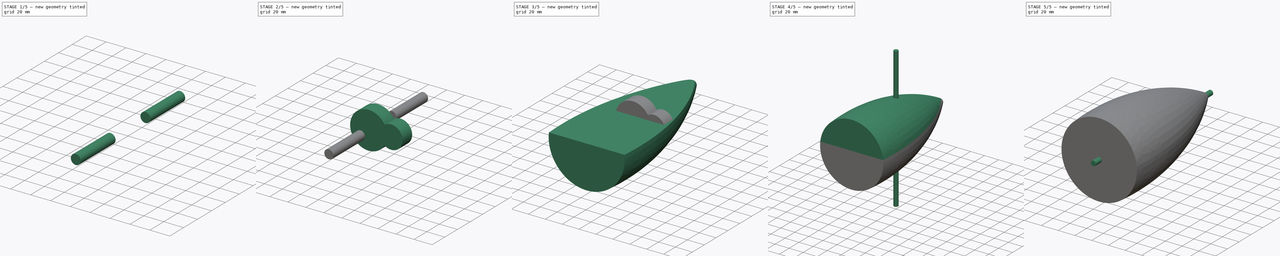
[diagram: build sequence overview — one tinted view per stage of 5, left to right]
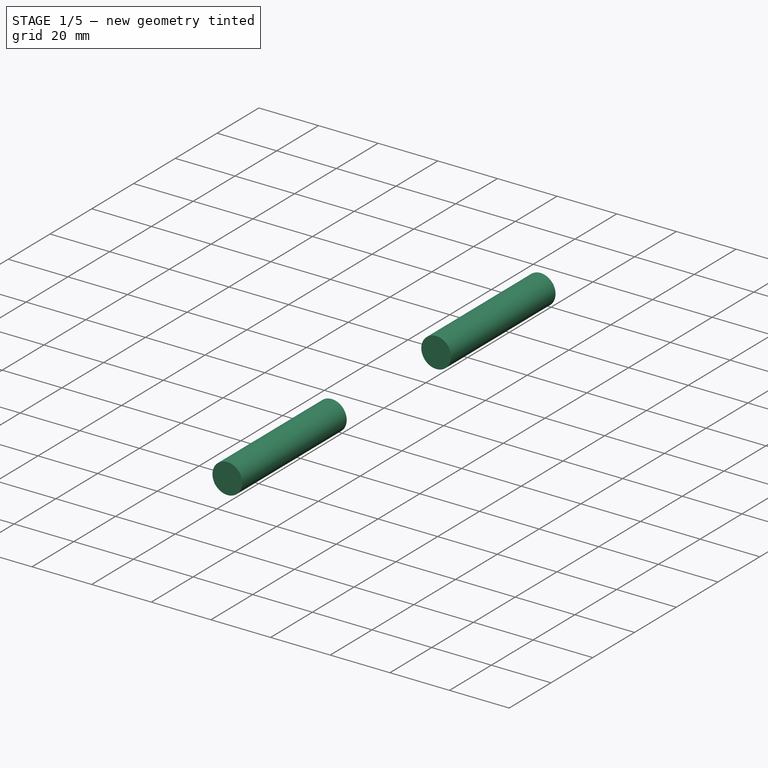
[diagram: stage 1 of 5 — iso view after this stage's code; geometry added in this stage tinted green]
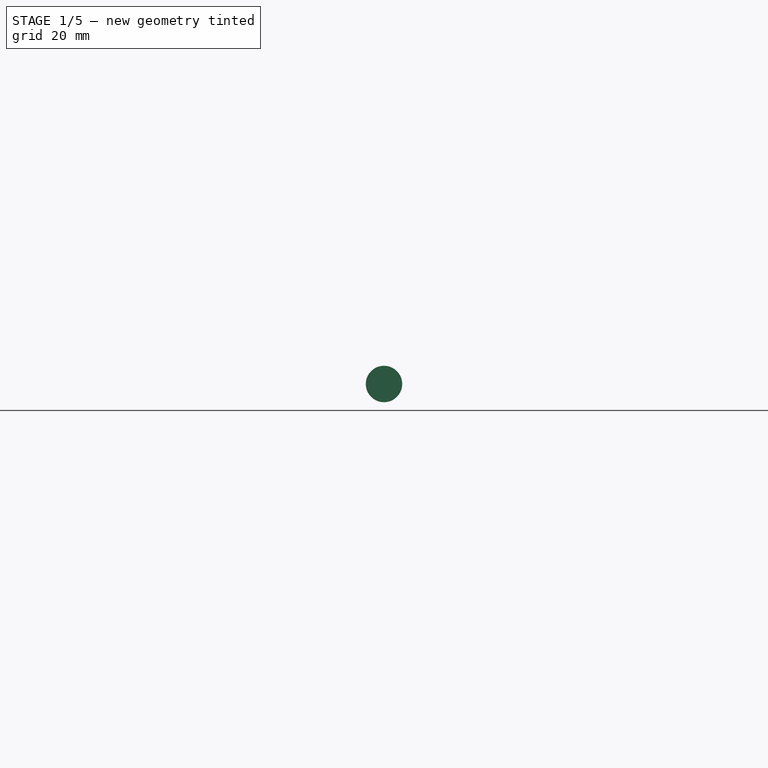
[diagram: stage 1 of 5 — front view after this stage's code; geometry added in this stage tinted green]
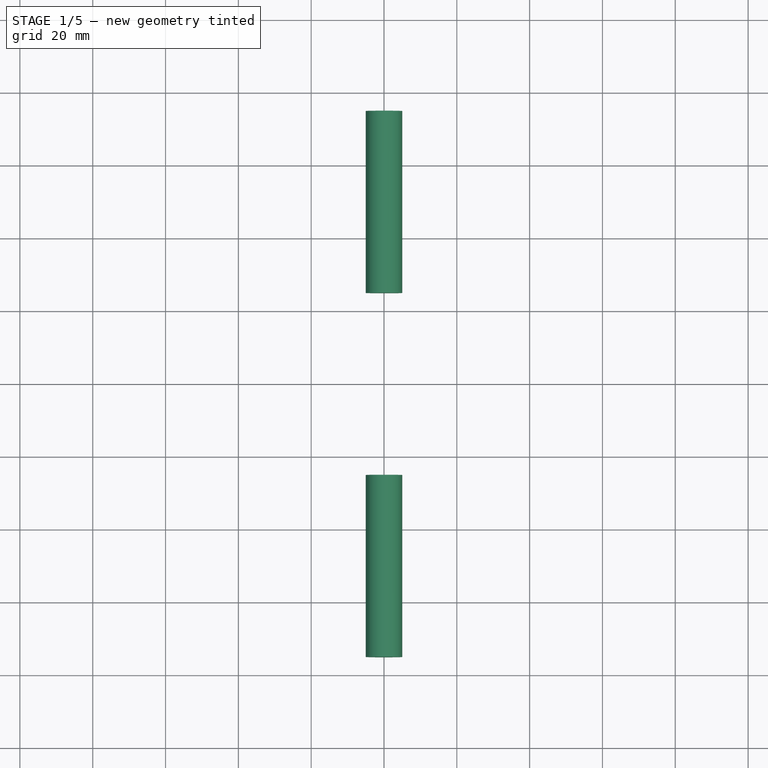
[diagram: stage 1 of 5 — top view after this stage's code; geometry added in this stage tinted green]
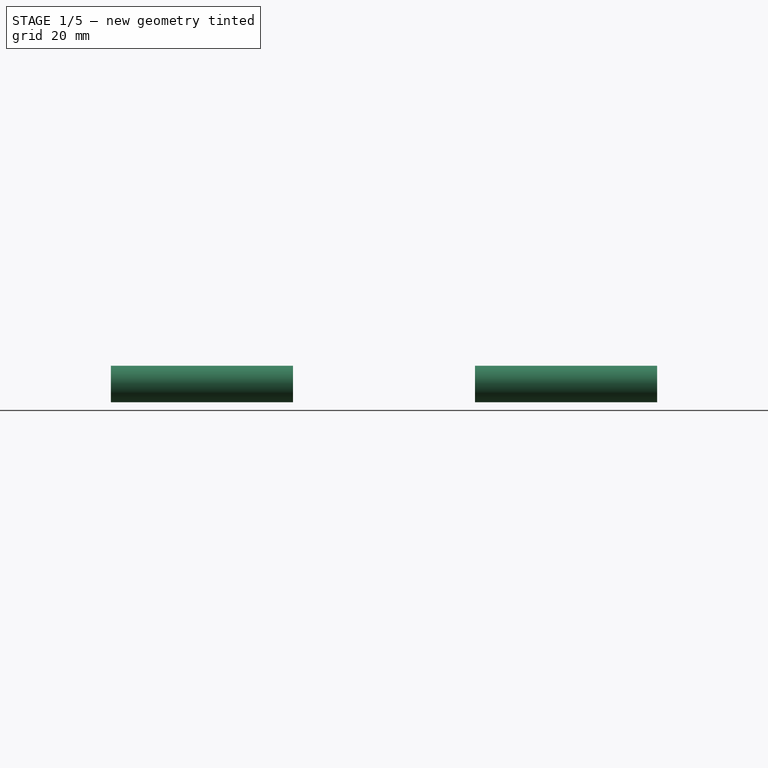
[diagram: stage 1 of 5 — right view after this stage's code; geometry added in this stage tinted green]
FCSTD DOCUMENT  (FreeCAD 0.16R6705 (Git))
Label: puntale_con_tappo
License: All rights reserved
LicenseURL: http://it.wikipedia.org/wiki/<copyright redacted>
objects: Sketcher::SketchObject×11, PartDesign::Pad×7, Part::Loft×2, Part::Part2DObjectPython×2, Part::MultiFuse×2, Part::Fuse×2, Part::Box×1, Part::MultiCommon×1, Part::Cut×1
note: 36 computed .brp shape members not serialized (recipe doc carries the construction recipe); baked Part::Feature solids carry a one-line shape summary decoded from their .brp

FEATURE [Sketcher::SketchObject] Sketch010
  Placement = pos=(0,-25,0) rot=(-1,0,0;4.71239rad)
  sketch-geometry (1):
    g0: Circle CenterX=0 CenterY=0 CenterZ=0 NormalX=0 NormalY=0 NormalZ=1 Radius=5
  constraints (1):
    c: Radius(g0) = 5
FEATURE [PartDesign::Pad] Pad006
  Length = 50
  Length2 = 100
  Placement = pos=(0,-25,0) rot=(-1,0,0;4.71239rad)
  Sketch = -> Sketch010
  Type = 0
FEATURE [Sketcher::SketchObject] Sketch011
  Placement = pos=(0,75,0) rot=(1,0,0;1.5708rad)
  sketch-geometry (1):
    g0: Circle CenterX=0 CenterY=0 CenterZ=0 NormalX=0 NormalY=0 NormalZ=1 Radius=5
  constraints (1):
    c: Radius(g0) = 5
FEATURE [PartDesign::Pad] Pad007
  Length = 50
  Length2 = 100
  Placement = pos=(0,75,0) rot=(1,0,0;1.5708rad)
  Sketch = -> Sketch011
  Type = 0
FEATURE [Part::Fuse] Fusion002  label="scassi_perno"
  Base = -> Pad006
  Tool = -> Pad007
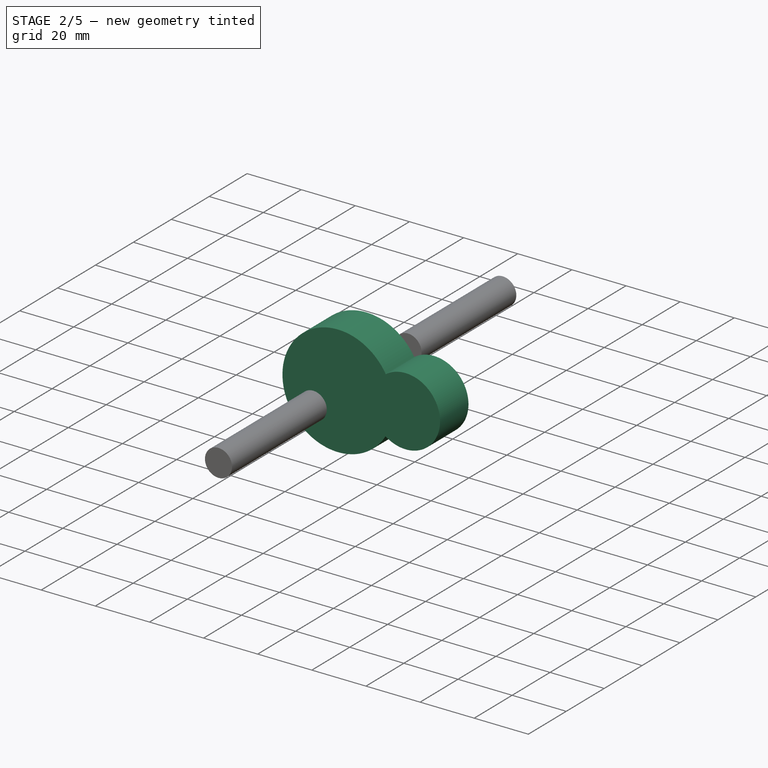
[diagram: stage 2 of 5 — iso view after this stage's code; geometry added in this stage tinted green]
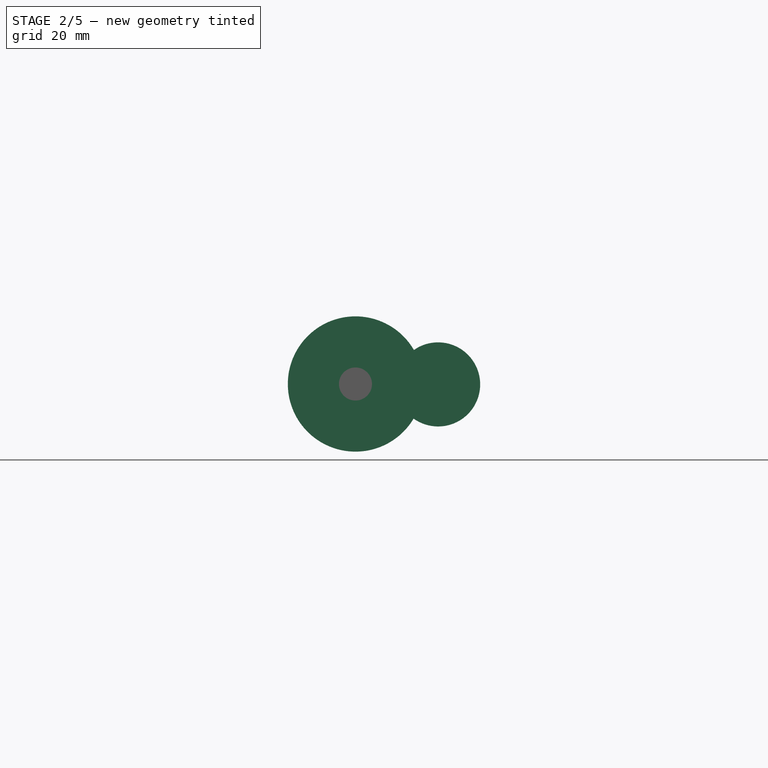
[diagram: stage 2 of 5 — front view after this stage's code; geometry added in this stage tinted green]
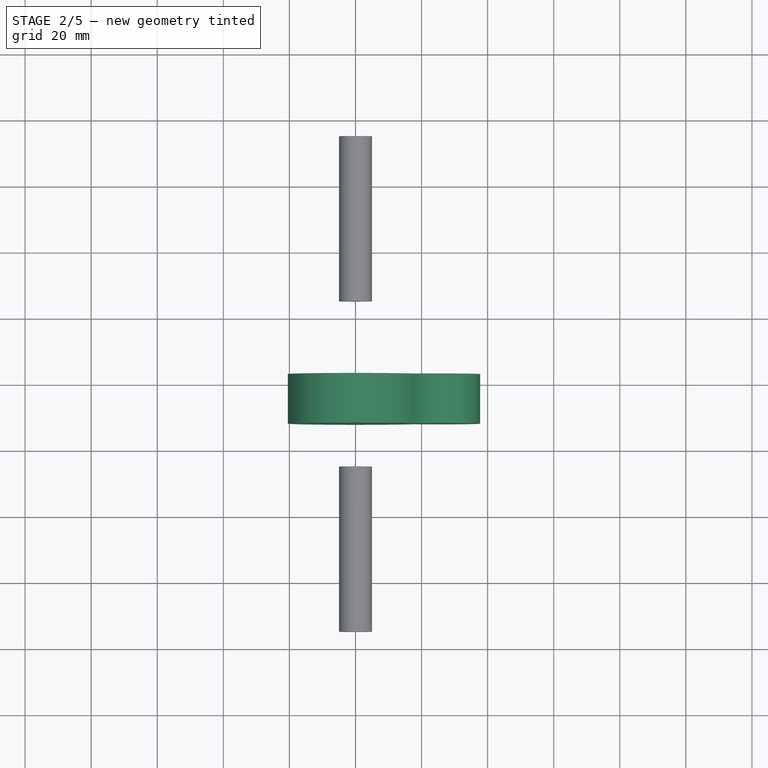
[diagram: stage 2 of 5 — top view after this stage's code; geometry added in this stage tinted green]
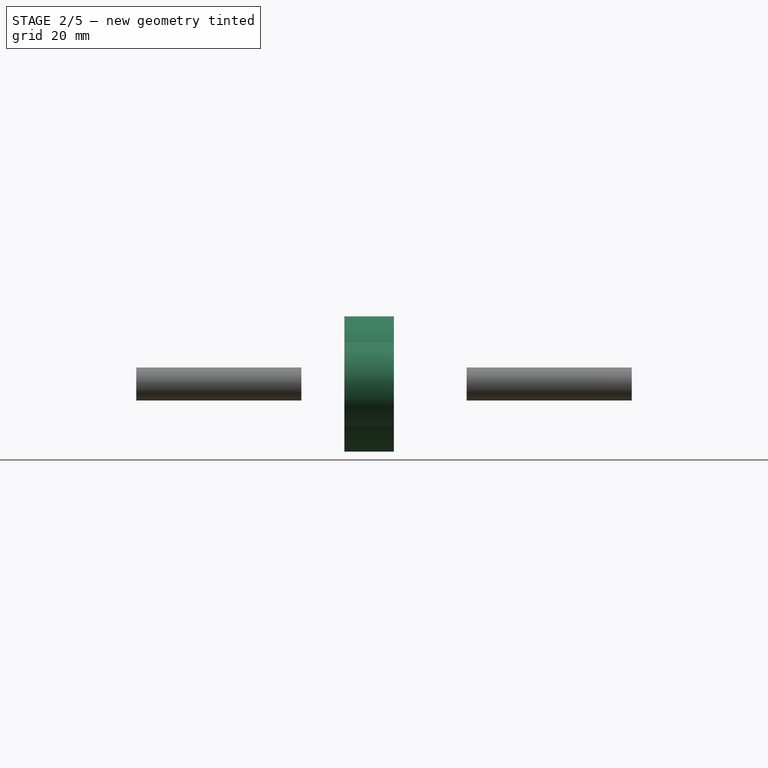
[diagram: stage 2 of 5 — right view after this stage's code; geometry added in this stage tinted green]
FEATURE [Sketcher::SketchObject] Sketch008
  Placement = pos=(0,3,0) rot=(1,0,0;1.5708rad)
  sketch-geometry (1):
    g0: Circle CenterX=0 CenterY=0 CenterZ=0 NormalX=0 NormalY=0 NormalZ=1 Radius=20.4744
FEATURE [PartDesign::Pad] Pad004  label="scasso_ruota_dentata"
  Length = 15
  Length2 = 100
  Placement = pos=(0,3,0) rot=(1,0,0;1.5708rad)
  Sketch = -> Sketch008
  Type = 0
FEATURE [Sketcher::SketchObject] Sketch009
  Placement = pos=(0,3,0) rot=(-1,0,0;4.71239rad)
  sketch-geometry (1):
    g0: Circle CenterX=25.012 CenterY=-0.123199 CenterZ=0 NormalX=0 NormalY=0 NormalZ=1 Radius=12.7304
FEATURE [PartDesign::Pad] Pad005  label="scasso_ruota_dentata_motore"
  Length = 15
  Length2 = 100
  Placement = pos=(0,3,0) rot=(-1,0,0;4.71239rad)
  Sketch = -> Sketch009
  Type = 0
FEATURE [Part::Fuse] Fusion001  label="scassi_ruote_dentate"
  Base = -> Pad005
  Tool = -> Pad004
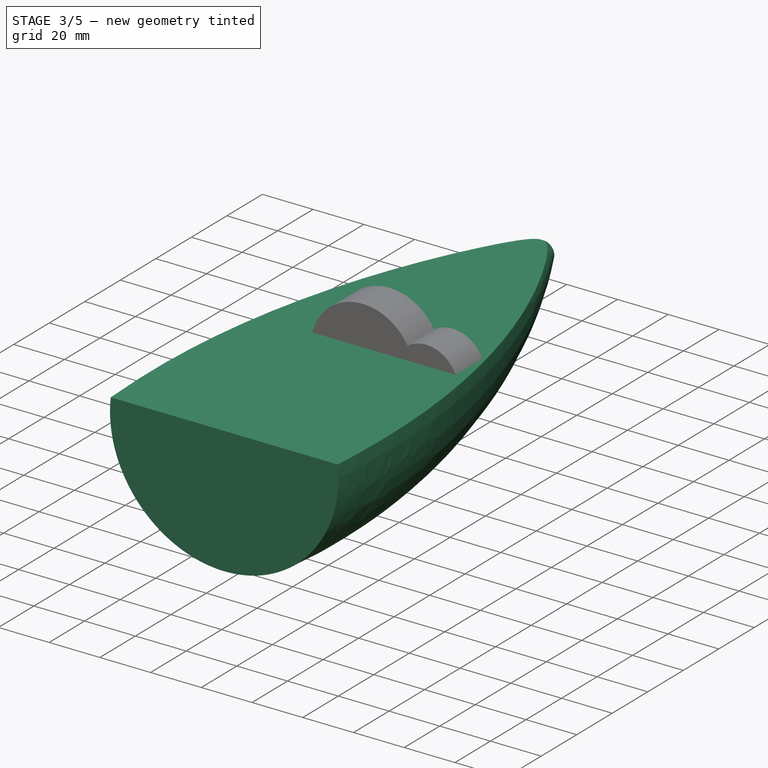
[diagram: stage 3 of 5 — iso view after this stage's code; geometry added in this stage tinted green]
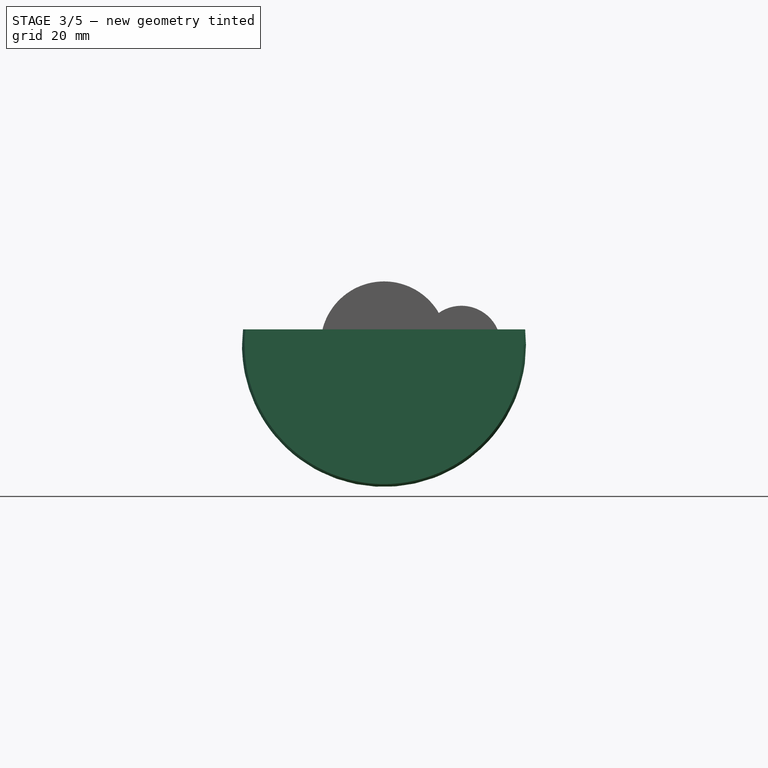
[diagram: stage 3 of 5 — front view after this stage's code; geometry added in this stage tinted green]
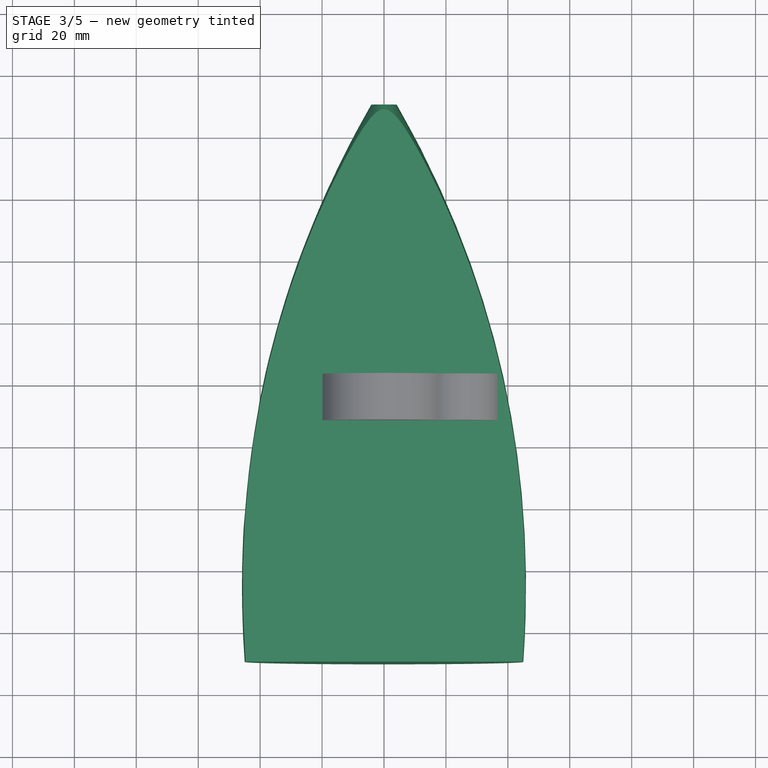
[diagram: stage 3 of 5 — top view after this stage's code; geometry added in this stage tinted green]
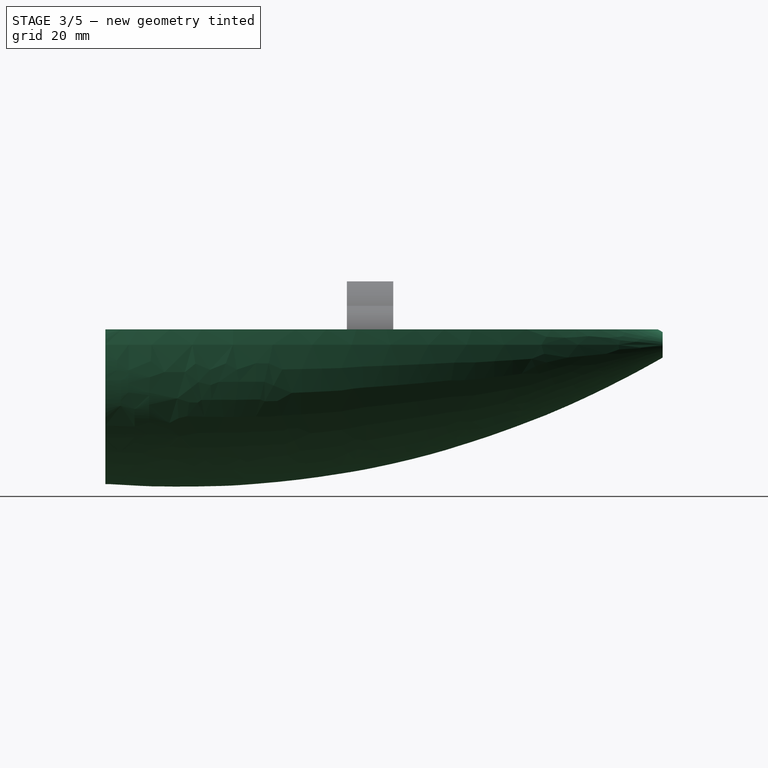
[diagram: stage 3 of 5 — right view after this stage's code; geometry added in this stage tinted green]
FEATURE [Sketcher::SketchObject] Sketch
  Placement = pos=(0,90,0) rot=(1,0,0;1.5708rad)
  sketch-geometry (1):
    g0: Circle CenterX=0 CenterY=0 CenterZ=0 NormalX=0 NormalY=0 NormalZ=1 Radius=4.12022
FEATURE [Sketcher::SketchObject] Sketch001
  Placement = pos=(0,0,0) rot=(1,0,0;1.5708rad)
  sketch-geometry (1):
    g0: Circle CenterX=0 CenterY=0 CenterZ=0 NormalX=0 NormalY=0 NormalZ=1 Radius=39
  constraints (1):
    c: Radius(g0) = 39
FEATURE [Sketcher::SketchObject] Sketch002
  Placement = pos=(0,-90,0) rot=(1,0,0;1.5708rad)
  sketch-geometry (1):
    g0: Circle CenterX=0 CenterY=0 CenterZ=0 NormalX=0 NormalY=0 NormalZ=1 Radius=45
  constraints (1):
    c: Radius(g0) = 45
FEATURE [Part::Loft] Loft  label="esterno"
  Closed = false
  Ruled = false
  Sections = -> [Sketch,Sketch001,Sketch002]
  Solid = true
FEATURE [Part::Box] Box  label="Cubo"
  Height = 100
  Length = 50
  Placement = pos=(50,-100,5) rot=(0,-1,0;1.5708rad)
  Width = 200
FEATURE [Part::Cut] Cut  label="corpo"
  Base = -> Loft
  Tool = -> Box
FEATURE [Part::MultiFuse] Fusion003  label="scassi_tutti"
  Shapes = -> [Fusion001,Fusion002]
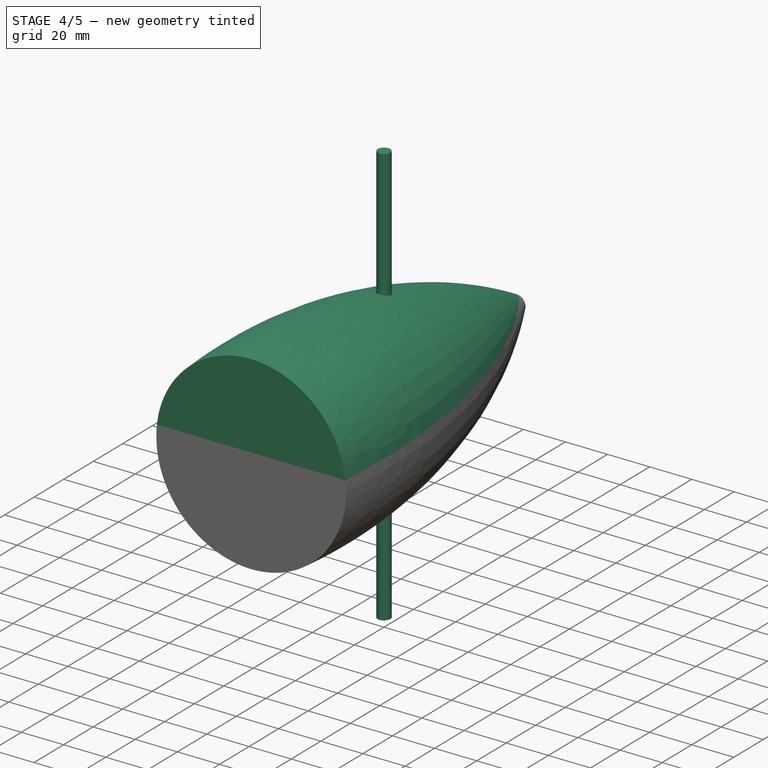
[diagram: stage 4 of 5 — iso view after this stage's code; geometry added in this stage tinted green]
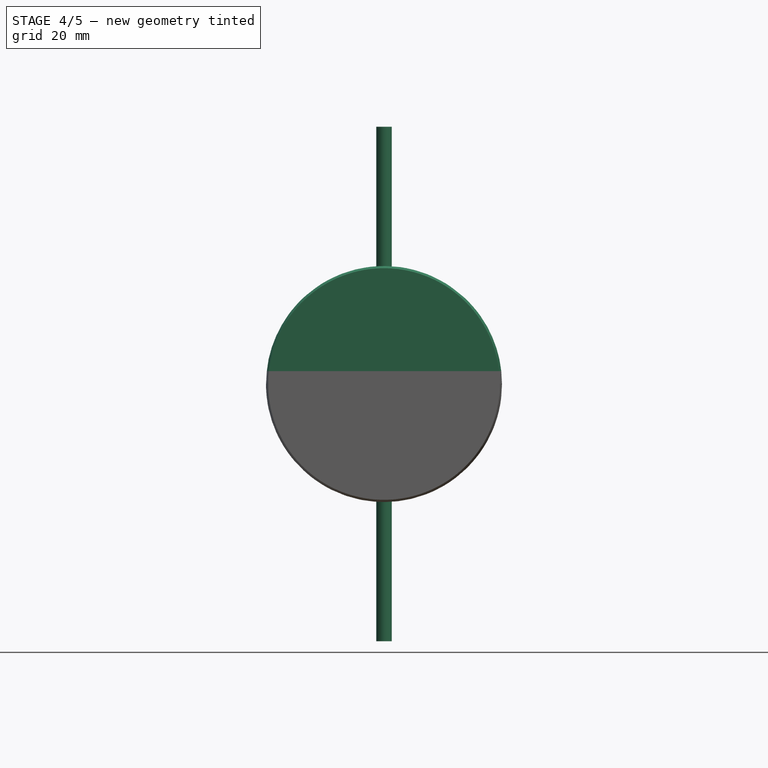
[diagram: stage 4 of 5 — front view after this stage's code; geometry added in this stage tinted green]
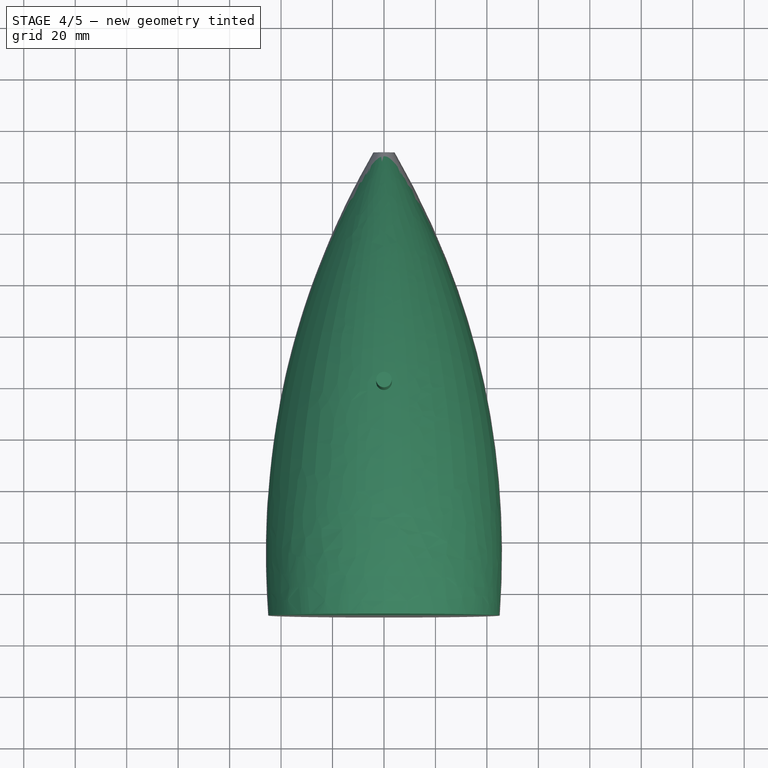
[diagram: stage 4 of 5 — top view after this stage's code; geometry added in this stage tinted green]
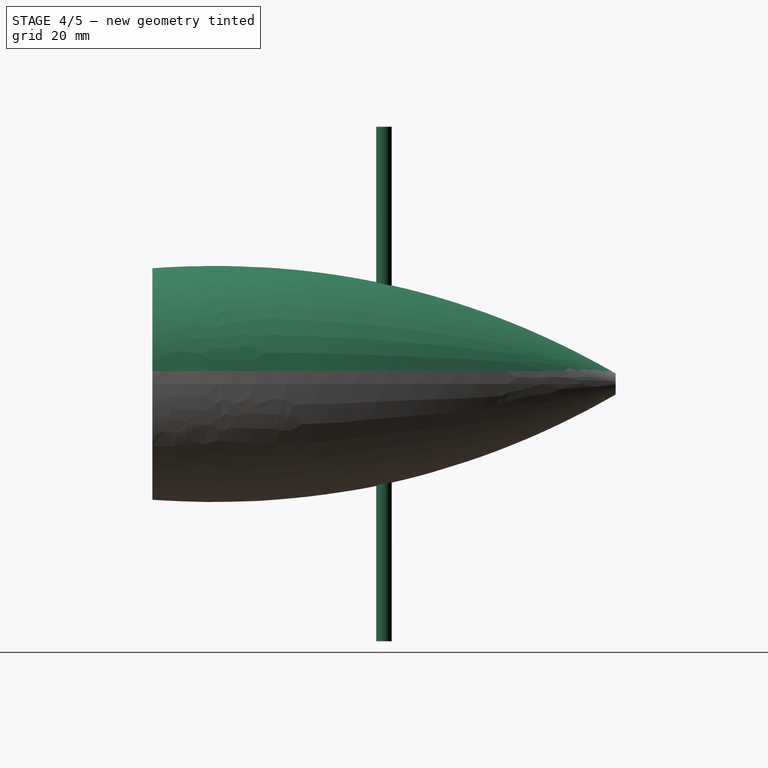
[diagram: stage 4 of 5 — right view after this stage's code; geometry added in this stage tinted green]
FEATURE [Sketcher::SketchObject] Sketch006
  Placement = pos=(0,0,0) rot=(1,0,0;3.14159rad)
  sketch-geometry (1):
    g0: Circle CenterX=0 CenterY=0 CenterZ=0 NormalX=0 NormalY=0 NormalZ=1 Radius=3.00999
FEATURE [PartDesign::Pad] Pad002
  Length = 200
  Length2 = 200
  Midplane = true
  Placement = pos=(0,0,0) rot=(1,0,0;3.14159rad)
  Sketch = -> Sketch006
  Type = 0
FEATURE [Part::Part2DObjectPython] InvoluteGear001  # Draft 2D object (typed FeaturePython)
  ExternalGear = true
  HighPrecision = true
  Modules = 2.5
  NumberOfTeeth = 7
  Placement = pos=(25,1,0) rot=(1,0,0;1.5708rad)
  PressureAngle = 20
FEATURE [PartDesign::Pad] Pad003  label="ruota_dentata_motore"
  Length = 12
  Length2 = 100
  Placement = pos=(25,1,0) rot=(1,0,0;1.5708rad)
  Sketch = -> InvoluteGear001
  Type = 0
FEATURE [Part::MultiCommon] Common  label="tappo"
  Shapes = -> [Loft,Box]
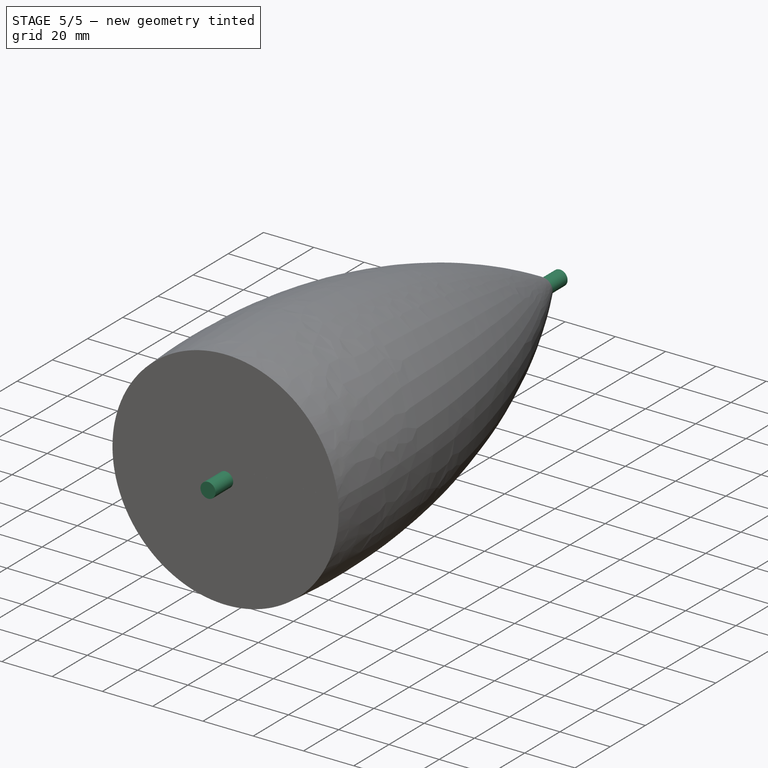
[diagram: stage 5 of 5 — iso view after this stage's code; geometry added in this stage tinted green]
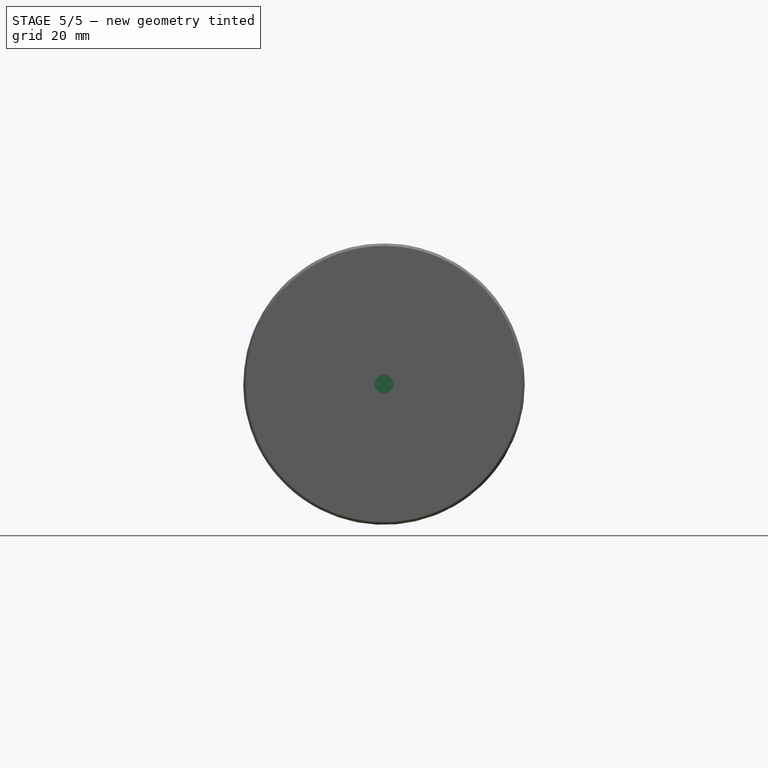
[diagram: stage 5 of 5 — front view after this stage's code; geometry added in this stage tinted green]
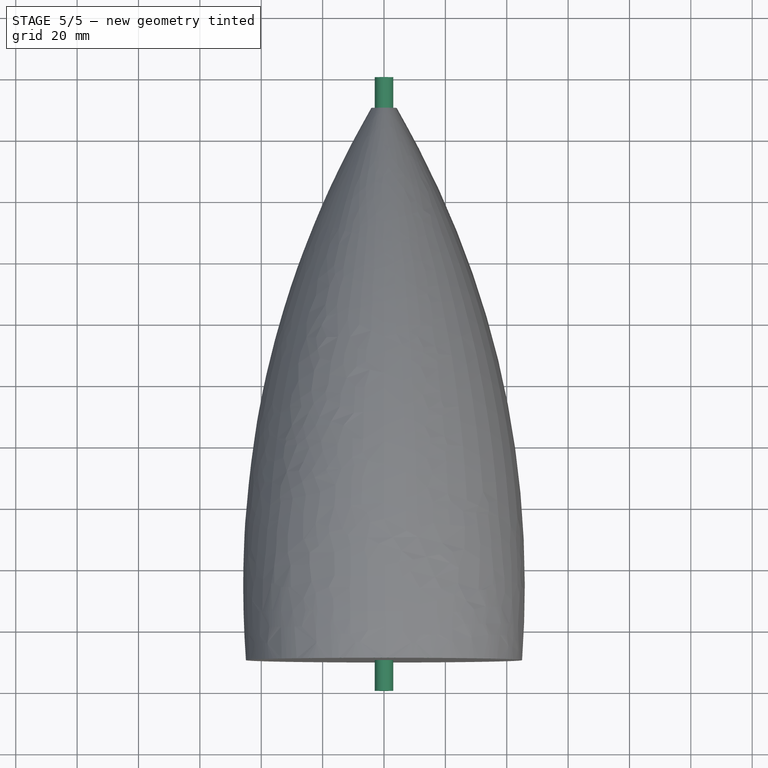
[diagram: stage 5 of 5 — top view after this stage's code; geometry added in this stage tinted green]
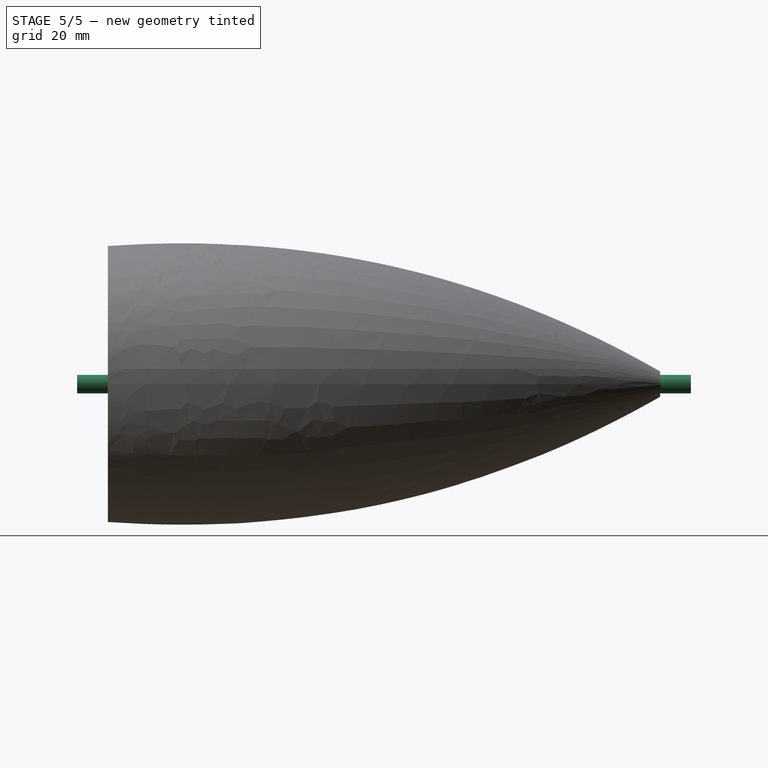
[diagram: stage 5 of 5 — right view after this stage's code; geometry added in this stage tinted green]
FEATURE [Sketcher::SketchObject] Sketch003
  Placement = pos=(0,90,0) rot=(1,0,0;1.5708rad)
  sketch-geometry (1):
    g0: Circle CenterX=0 CenterY=0 CenterZ=0 NormalX=0 NormalY=0 NormalZ=1 Radius=4.12022
FEATURE [Sketcher::SketchObject] Sketch004
  Placement = pos=(0,0,0) rot=(1,0,0;1.5708rad)
  sketch-geometry (1):
    g0: Circle CenterX=0 CenterY=0 CenterZ=0 NormalX=0 NormalY=0 NormalZ=1 Radius=3.8086
  constraints (1):
    c: Radius(g0) = 3.8086
FEATURE [Sketcher::SketchObject] Sketch005
  Placement = pos=(0,-90,0) rot=(1,0,0;1.5708rad)
  sketch-geometry (1):
    g0: Circle CenterX=0 CenterY=0 CenterZ=0 NormalX=0 NormalY=0 NormalZ=1 Radius=45
  constraints (1):
    c: Radius(g0) = 45
FEATURE [Part::Loft] Loft001  label="interno"
  Closed = false
  Ruled = false
  Sections = -> [Sketch003,Sketch004,Sketch005]
  Solid = true
FEATURE [Part::Part2DObjectPython] InvoluteGear  # Draft 2D object (typed FeaturePython)
  ExternalGear = true
  HighPrecision = true
  Modules = 2.5
  NumberOfTeeth = 13
  PressureAngle = 10
FEATURE [PartDesign::Pad] Pad
  Length = 10
  Length2 = 100
  Sketch = -> InvoluteGear
  Type = 0
FEATURE [Part::MultiFuse] Fusion  label="ingranaggio"
  Placement = pos=(0,0,0) rot=(1,0,0;1.5708rad)
  Shapes = -> [Pad002,Pad]
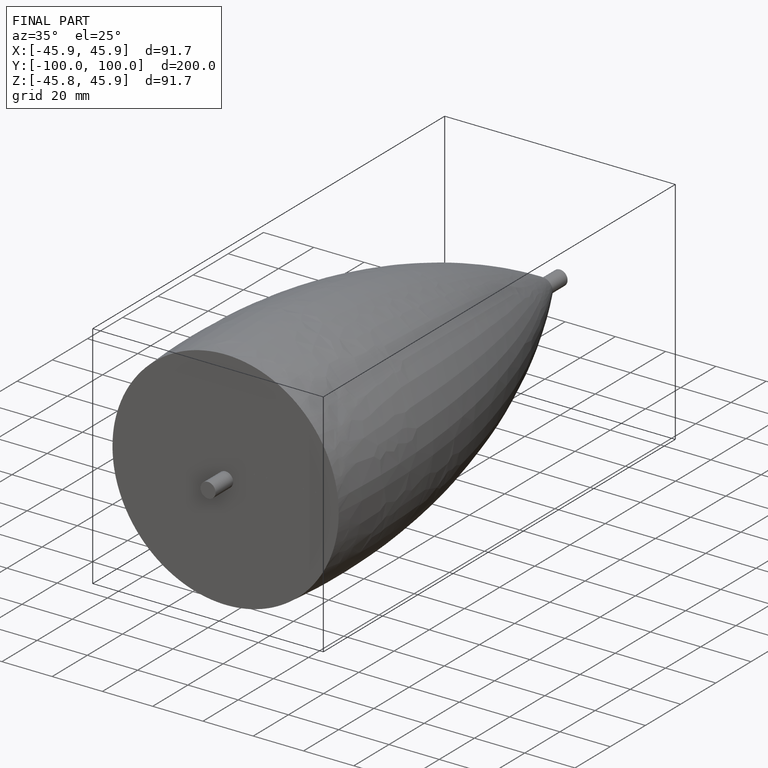
[diagram: finished part — iso view with bounding-box wireframe]
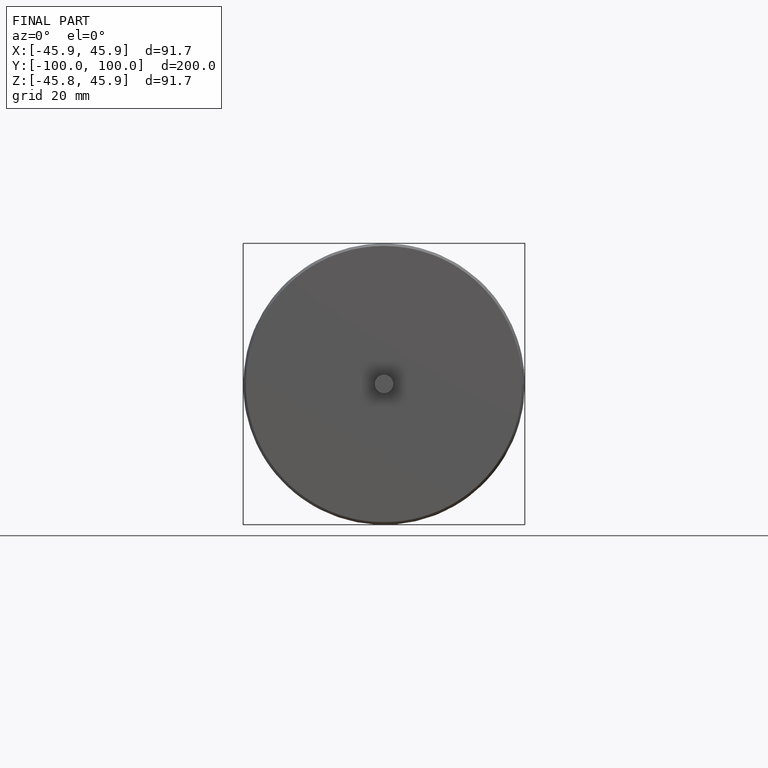
[diagram: finished part — front view with bounding-box wireframe]
